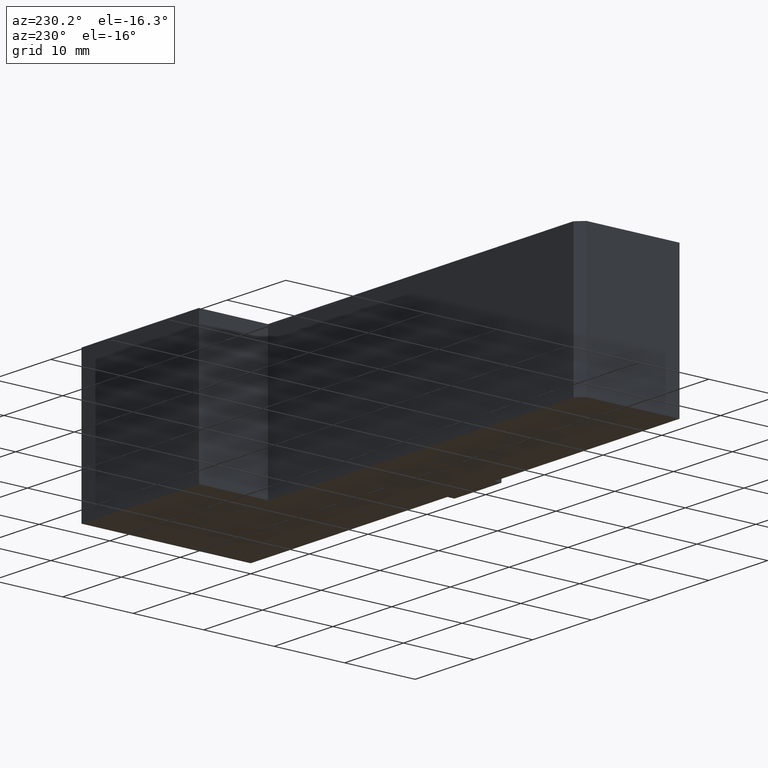
[diagram: clean part render]
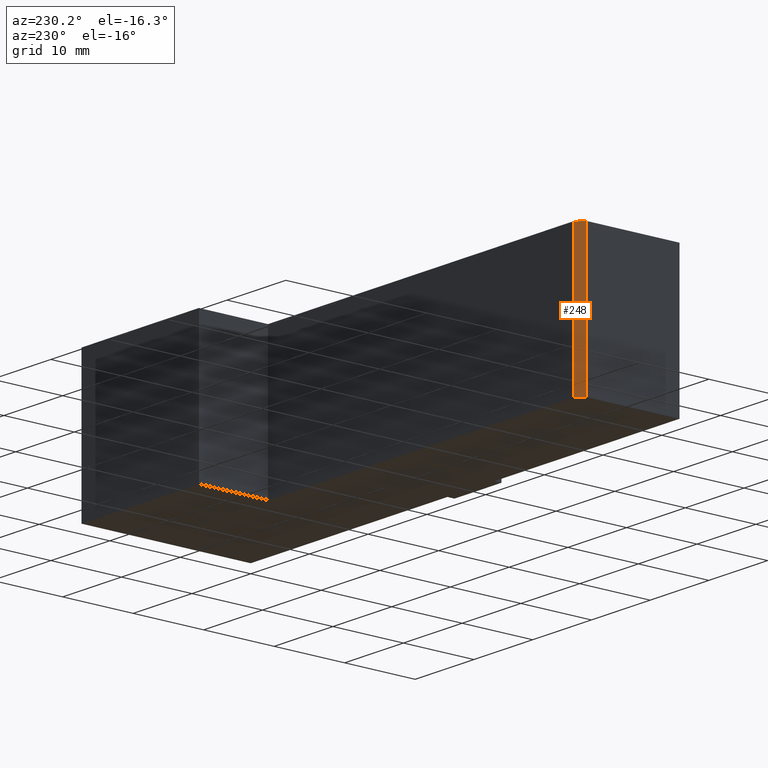
[diagram: same view with one face highlighted and labeled with its STEP entity id]
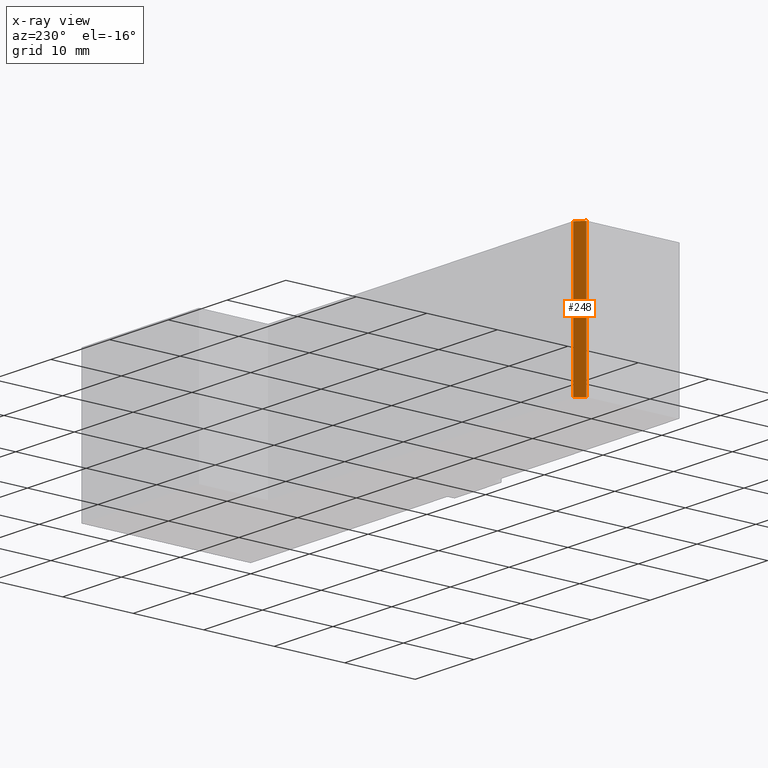
[diagram: x-ray of the same camera — body ghosted, the highlighted face saturated]
A machine part, auxiliary view. The second image highlights one B-rep face of the part: STEP entity #248.
The next image is the same camera in x-ray: the body ghosted, the highlighted face saturated — about 0% of this face is hidden behind the body in this view.
In plain terms, the highlighted planar face has unit normal (-0.7071, 0.7071, 0).
Its self-contained STEP definition (entity closure, byte-faithful):
#22=FACE_OUTER_BOUND('',#35,.T.);
#35=EDGE_LOOP('',(#194,#195,#196,#197));
#49=LINE('',#370,#82);
#63=LINE('',#397,#96);
#64=LINE('',#400,#97);
#65=LINE('',#401,#98);
#82=VECTOR('',#302,10.);
#96=VECTOR('',#326,10.);
#97=VECTOR('',#329,10.);
#98=VECTOR('',#330,10.);
#115=VERTEX_POINT('',#367);
#116=VERTEX_POINT('',#369);
#124=VERTEX_POINT('',#395);
#125=VERTEX_POINT('',#399);
#137=EDGE_CURVE('',#116,#115,#49,.T.);
#151=EDGE_CURVE('',#124,#115,#63,.T.);
#152=EDGE_CURVE('',#124,#125,#64,.T.);
#153=EDGE_CURVE('',#125,#116,#65,.T.);
#194=ORIENTED_EDGE('',*,*,#152,.T.);
#195=ORIENTED_EDGE('',*,*,#153,.T.);
#196=ORIENTED_EDGE('',*,*,#137,.T.);
#197=ORIENTED_EDGE('',*,*,#151,.F.);
#235=PLANE('',#284);
#248=ADVANCED_FACE('',(#22),#235,.T.);
#284=AXIS2_PLACEMENT_3D('',#398,#327,#328);
#302=DIRECTION('',(-0.707106781186549,-0.707106781186546,0.));
#326=DIRECTION('',(0.,0.,-1.));
#327=DIRECTION('center_axis',(-0.707106781186546,0.707106781186549,0.));
#328=DIRECTION('ref_axis',(0.,0.,1.));
#329=DIRECTION('',(0.707106781186549,0.707106781186546,0.));
#330=DIRECTION('',(0.,0.,-1.));
#367=CARTESIAN_POINT('',(-73.,13.2,-10.));
#369=CARTESIAN_POINT('',(-72.,14.2,-10.));
#370=CARTESIAN_POINT('',(-73.,13.2,-10.));
#395=CARTESIAN_POINT('',(-73.,13.2,10.));
#397=CARTESIAN_POINT('',(-73.,13.2,0.));
#398=CARTESIAN_POINT('Origin',(-73.,13.2,0.));
#399=CARTESIAN_POINT('',(-72.,14.2,10.));
#400=CARTESIAN_POINT('',(-73.,13.2,10.));
#401=CARTESIAN_POINT('',(-72.,14.2,0.));